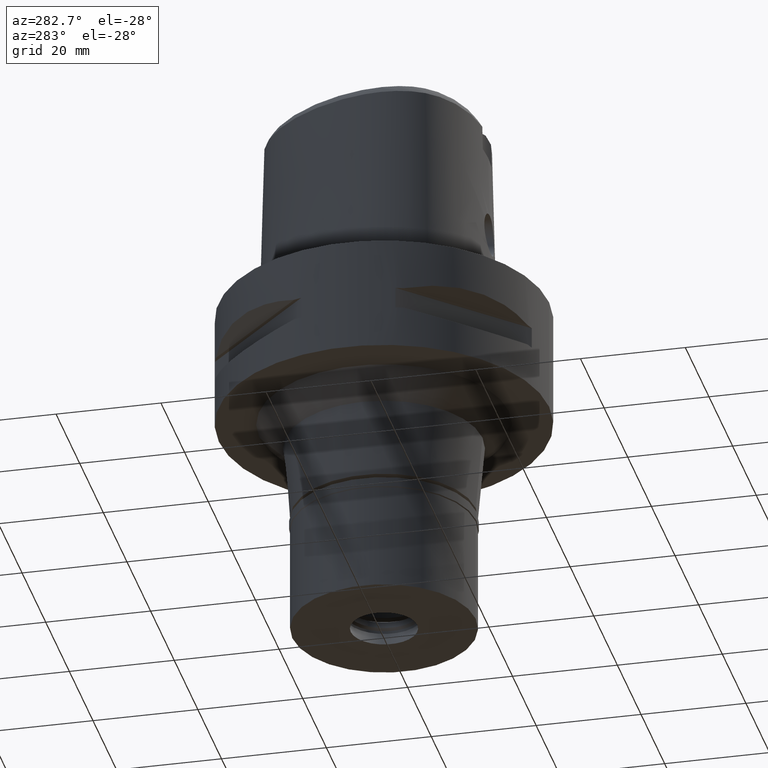
[diagram: clean part render]
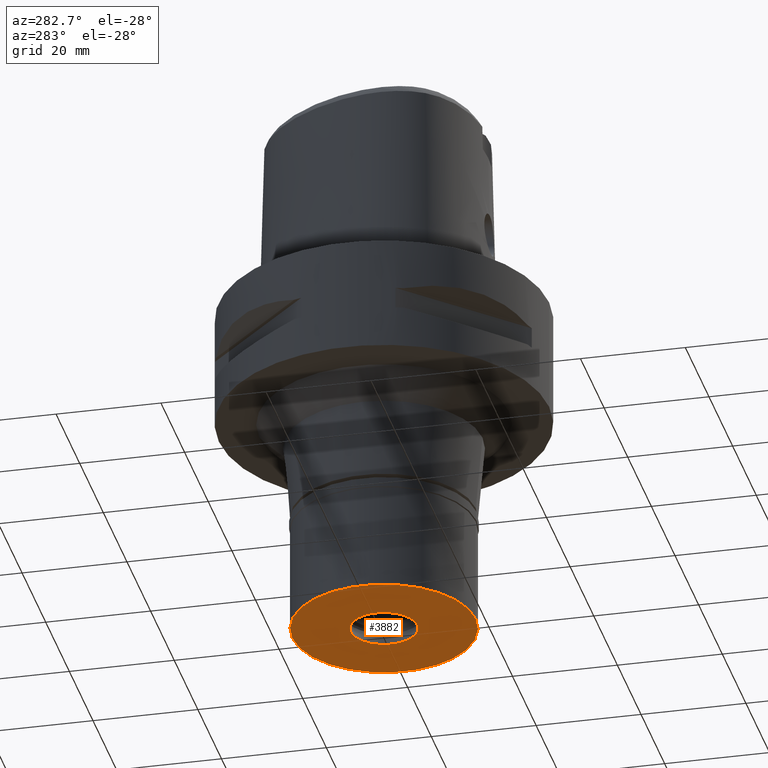
[diagram: same view with one face highlighted and labeled with its STEP entity id]
A machine part, auxiliary view. The second image highlights one B-rep face of the part: STEP entity #3882.
In plain terms, the highlighted planar face has unit normal (0, 0, -1).
Its self-contained STEP definition (entity closure, byte-faithful):
#46 = DIRECTION ( 'NONE',  ( 0.0000000000000000000, 0.0000000000000000000, -1.000000000000000000 ) ) ;
#82 = VERTEX_POINT ( 'NONE', #1062 ) ;
#432 = ORIENTED_EDGE ( 'NONE', *, *, #670, .F. ) ;
#670 = EDGE_CURVE ( 'NONE', #1726, #2927, #2391, .T. ) ;
#763 = VERTEX_POINT ( 'NONE', #2811 ) ;
#832 = CARTESIAN_POINT ( 'NONE',  ( 0.0000000000000000000, -17.50000000000000000, -22.50000000000000000 ) ) ;
#865 = AXIS2_PLACEMENT_3D ( 'NONE', #1091, #4382, #1068 ) ;
#949 = DIRECTION ( 'NONE',  ( 0.0000000000000000000, 0.0000000000000000000, 1.000000000000000000 ) ) ;
#984 = EDGE_CURVE ( 'NONE', #82, #763, #4111, .T. ) ;
#1062 = CARTESIAN_POINT ( 'NONE',  ( 0.0000000000000000000, 6.349999999998999556, -22.50000000000000000 ) ) ;
#1068 = DIRECTION ( 'NONE',  ( 0.0000000000000000000, 1.000000000000000000, 0.0000000000000000000 ) ) ;
#1091 = CARTESIAN_POINT ( 'NONE',  ( 0.0000000000000000000, 0.0000000000000000000, -22.50000000000000000 ) ) ;
#1115 = AXIS2_PLACEMENT_3D ( 'NONE', #1198, #3770, #3869 ) ;
#1128 = CARTESIAN_POINT ( 'NONE',  ( 0.0000000000000000000, 0.0000000000000000000, -22.50000000000000000 ) ) ;
#1198 = CARTESIAN_POINT ( 'NONE',  ( 0.0000000000000000000, 0.0000000000000000000, -22.50000000000000000 ) ) ;
#1273 = ORIENTED_EDGE ( 'NONE', *, *, #1518, .F. ) ;
#1387 = DIRECTION ( 'NONE',  ( 0.0000000000000000000, 0.0000000000000000000, -1.000000000000000000 ) ) ;
#1518 = EDGE_CURVE ( 'NONE', #763, #82, #3164, .T. ) ;
#1676 = CARTESIAN_POINT ( 'NONE',  ( 0.0000000000000000000, 0.0000000000000000000, -22.50000000000000000 ) ) ;
#1726 = VERTEX_POINT ( 'NONE', #832 ) ;
#1741 = CARTESIAN_POINT ( 'NONE',  ( 0.0000000000000000000, 17.50000000000000000, -22.50000000000000000 ) ) ;
#1824 = DIRECTION ( 'NONE',  ( 0.0000000000000000000, -1.000000000000000000, 0.0000000000000000000 ) ) ;
#1855 = EDGE_LOOP ( 'NONE', ( #4330, #432 ) ) ;
#2174 = FACE_OUTER_BOUND ( 'NONE', #1855, .T. ) ;
#2391 = CIRCLE ( 'NONE', #4185, 17.50000000000000000 ) ;
#2582 = DIRECTION ( 'NONE',  ( 0.0000000000000000000, -1.000000000000000000, 0.0000000000000000000 ) ) ;
#2811 = CARTESIAN_POINT ( 'NONE',  ( 0.0000000000000000000, -6.349999999998999556, -22.50000000000000000 ) ) ;
#2927 = VERTEX_POINT ( 'NONE', #1741 ) ;
#3164 = CIRCLE ( 'NONE', #3245, 6.349999999998999556 ) ;
#3212 = FACE_BOUND ( 'NONE', #3222, .T. ) ;
#3222 = EDGE_LOOP ( 'NONE', ( #3619, #1273 ) ) ;
#3245 = AXIS2_PLACEMENT_3D ( 'NONE', #1128, #46, #2582 ) ;
#3619 = ORIENTED_EDGE ( 'NONE', *, *, #984, .F. ) ;
#3653 = CARTESIAN_POINT ( 'NONE',  ( 0.0000000000000000000, 0.0000000000000000000, -22.50000000000000000 ) ) ;
#3731 = AXIS2_PLACEMENT_3D ( 'NONE', #3653, #1387, #1824 ) ;
#3770 = DIRECTION ( 'NONE',  ( 0.0000000000000000000, 0.0000000000000000000, 1.000000000000000000 ) ) ;
#3869 = DIRECTION ( 'NONE',  ( 0.0000000000000000000, 1.000000000000000000, 0.0000000000000000000 ) ) ;
#3882 = ADVANCED_FACE ( 'NONE', ( #2174, #3212 ), #4705, .T. ) ;
#3945 = DIRECTION ( 'NONE',  ( 0.0000000000000000000, -1.000000000000000000, 0.0000000000000000000 ) ) ;
#4111 = CIRCLE ( 'NONE', #865, 6.349999999998999556 ) ;
#4174 = EDGE_CURVE ( 'NONE', #2927, #1726, #4276, .T. ) ;
#4185 = AXIS2_PLACEMENT_3D ( 'NONE', #1676, #949, #3945 ) ;
#4276 = CIRCLE ( 'NONE', #1115, 17.50000000000000000 ) ;
#4330 = ORIENTED_EDGE ( 'NONE', *, *, #4174, .F. ) ;
#4382 = DIRECTION ( 'NONE',  ( 0.0000000000000000000, 0.0000000000000000000, -1.000000000000000000 ) ) ;
#4705 = PLANE ( 'NONE',  #3731 ) ;